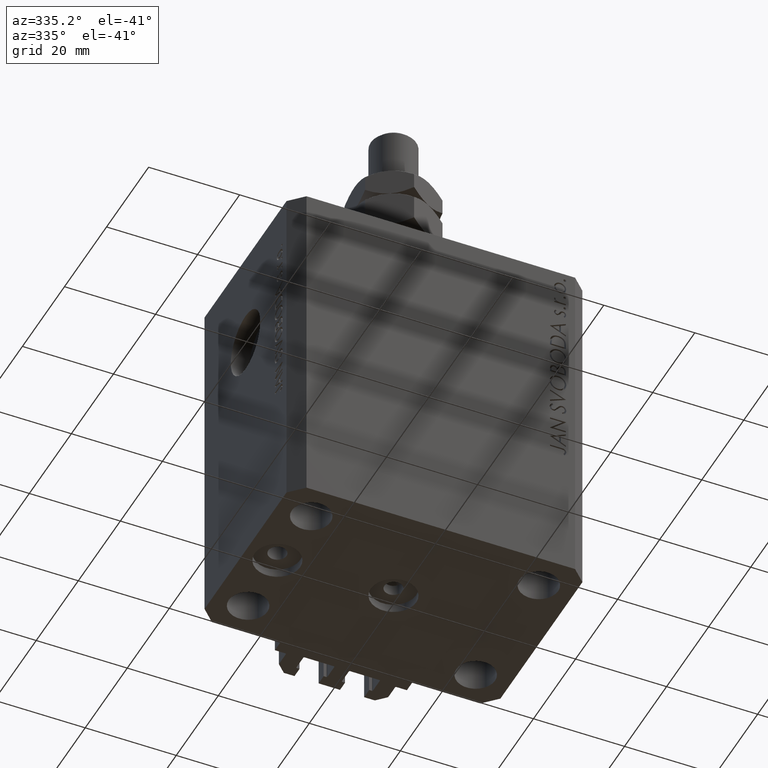
[diagram: clean part render]
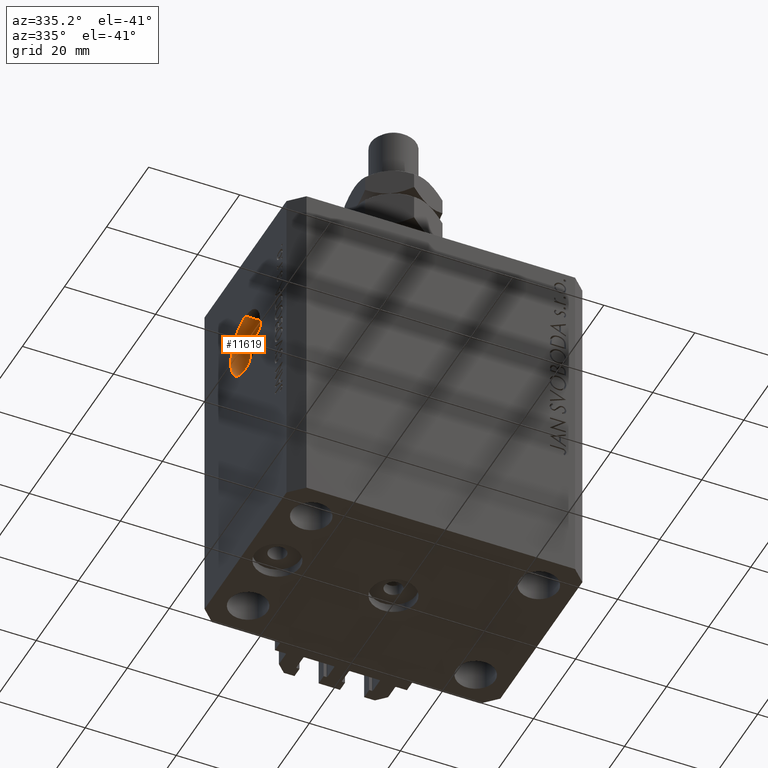
[diagram: same view with one face highlighted and labeled with its STEP entity id]
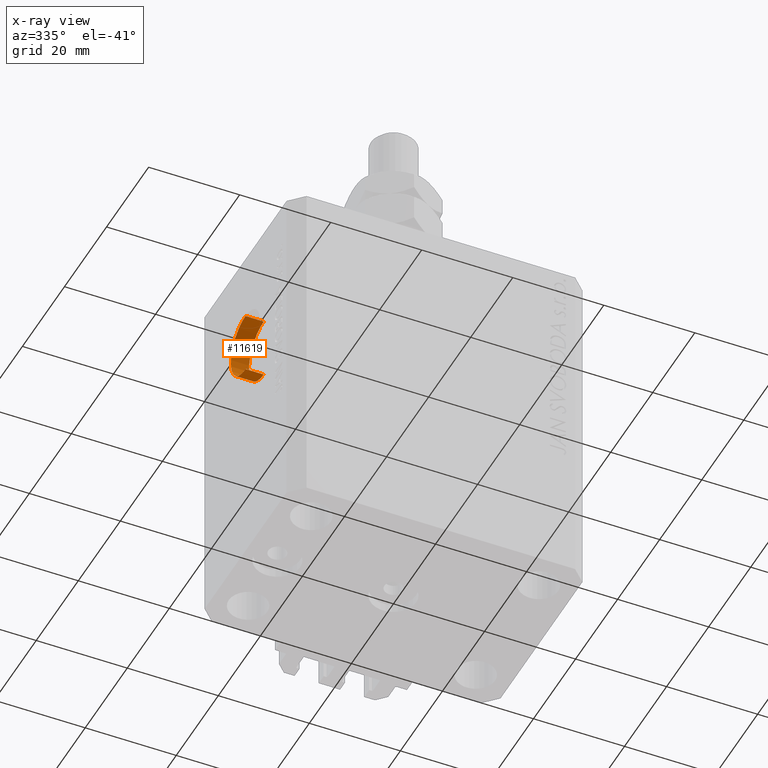
[diagram: x-ray of the same camera — body ghosted, the highlighted face saturated]
A machine part, auxiliary view. The second image highlights one B-rep face of the part: STEP entity #11619.
The next image is the same camera in x-ray: the body ghosted, the highlighted face saturated — about 0% of this face is hidden behind the body in this view.
In plain terms, the highlighted cylindrical surface (edge-blend (fillet) strip) has radius 7 mm, axis along (-1, -0, -0).
Its self-contained STEP definition (entity closure, byte-faithful):
#417 = ORIENTED_EDGE ( 'NONE', *, *, #10101, .F. ) ;
#1112 = CARTESIAN_POINT ( 'NONE',  ( -28.49999999999650413, 0.000000000000000000, -22.00000000000000000 ) ) ;
#2055 = DIRECTION ( 'NONE',  ( -1.000000000000000000, -0.000000000000000000, -0.000000000000000000 ) ) ;
#2380 = AXIS2_PLACEMENT_3D ( 'NONE', #1112, #10595, #25699 ) ;
#6549 = ORIENTED_EDGE ( 'NONE', *, *, #6707, .F. ) ;
#6707 = EDGE_CURVE ( 'NONE', #13374, #16659, #37608, .T. ) ;
#7591 = VECTOR ( 'NONE', #24456, 1000.000000000000000 ) ;
#7907 = CARTESIAN_POINT ( 'NONE',  ( -32.49999999999650413, 0.000000000000000000, -15.00000000000000000 ) ) ;
#8601 = CARTESIAN_POINT ( 'NONE',  ( -28.49999999999650413, 0.000000000000000000, -15.00000000000000000 ) ) ;
#9155 = AXIS2_PLACEMENT_3D ( 'NONE', #32671, #37111, #13593 ) ;
#10101 = EDGE_CURVE ( 'NONE', #16659, #40743, #10455, .T. ) ;
#10455 = LINE ( 'NONE', #36006, #28721 ) ;
#10595 = DIRECTION ( 'NONE',  ( -1.000000000000000000, -0.000000000000000000, -0.000000000000000000 ) ) ;
#11114 = EDGE_LOOP ( 'NONE', ( #417, #6549, #43721, #17151 ) ) ;
#11619 = ADVANCED_FACE ( 'NONE', ( #38778 ), #35061, .F. ) ;
#13374 = VERTEX_POINT ( 'NONE', #43052 ) ;
#13593 = DIRECTION ( 'NONE',  ( 0.000000000000000000, 0.000000000000000000, 1.000000000000000000 ) ) ;
#16040 = LINE ( 'NONE', #8601, #7591 ) ;
#16659 = VERTEX_POINT ( 'NONE', #43441 ) ;
#17151 = ORIENTED_EDGE ( 'NONE', *, *, #24298, .T. ) ;
#17541 = DIRECTION ( 'NONE',  ( 0.000000000000000000, 0.000000000000000000, 1.000000000000000000 ) ) ;
#20669 = AXIS2_PLACEMENT_3D ( 'NONE', #40589, #43819, #17541 ) ;
#24298 = EDGE_CURVE ( 'NONE', #35862, #40743, #47594, .T. ) ;
#24456 = DIRECTION ( 'NONE',  ( -1.000000000000000000, -0.000000000000000000, -0.000000000000000000 ) ) ;
#25699 = DIRECTION ( 'NONE',  ( 0.000000000000000000, 0.000000000000000000, 1.000000000000000000 ) ) ;
#28721 = VECTOR ( 'NONE', #2055, 1000.000000000000000 ) ;
#30398 = CARTESIAN_POINT ( 'NONE',  ( -32.49999999999650413, 8.572527594031474176E-16, -28.99999999999999645 ) ) ;
#30630 = EDGE_CURVE ( 'NONE', #13374, #35862, #16040, .T. ) ;
#32671 = CARTESIAN_POINT ( 'NONE',  ( -28.49999999999650413, 0.000000000000000000, -22.00000000000000000 ) ) ;
#35061 = CYLINDRICAL_SURFACE ( 'NONE', #2380, 6.999999999999999112 ) ;
#35862 = VERTEX_POINT ( 'NONE', #7907 ) ;
#36006 = CARTESIAN_POINT ( 'NONE',  ( -28.49999999999650413, 8.572527594031473190E-16, -28.99999999999999645 ) ) ;
#37111 = DIRECTION ( 'NONE',  ( -1.000000000000000000, 0.000000000000000000, 0.000000000000000000 ) ) ;
#37608 = CIRCLE ( 'NONE', #9155, 6.999999999999999112 ) ;
#38778 = FACE_OUTER_BOUND ( 'NONE', #11114, .T. ) ;
#40589 = CARTESIAN_POINT ( 'NONE',  ( -32.49999999999650413, 0.000000000000000000, -22.00000000000000000 ) ) ;
#40743 = VERTEX_POINT ( 'NONE', #30398 ) ;
#43052 = CARTESIAN_POINT ( 'NONE',  ( -28.49999999999650413, 0.000000000000000000, -15.00000000000000000 ) ) ;
#43441 = CARTESIAN_POINT ( 'NONE',  ( -28.49999999999650413, 8.572527594031474176E-16, -28.99999999999999645 ) ) ;
#43721 = ORIENTED_EDGE ( 'NONE', *, *, #30630, .T. ) ;
#43819 = DIRECTION ( 'NONE',  ( -1.000000000000000000, 0.000000000000000000, 0.000000000000000000 ) ) ;
#47594 = CIRCLE ( 'NONE', #20669, 6.999999999999999112 ) ;